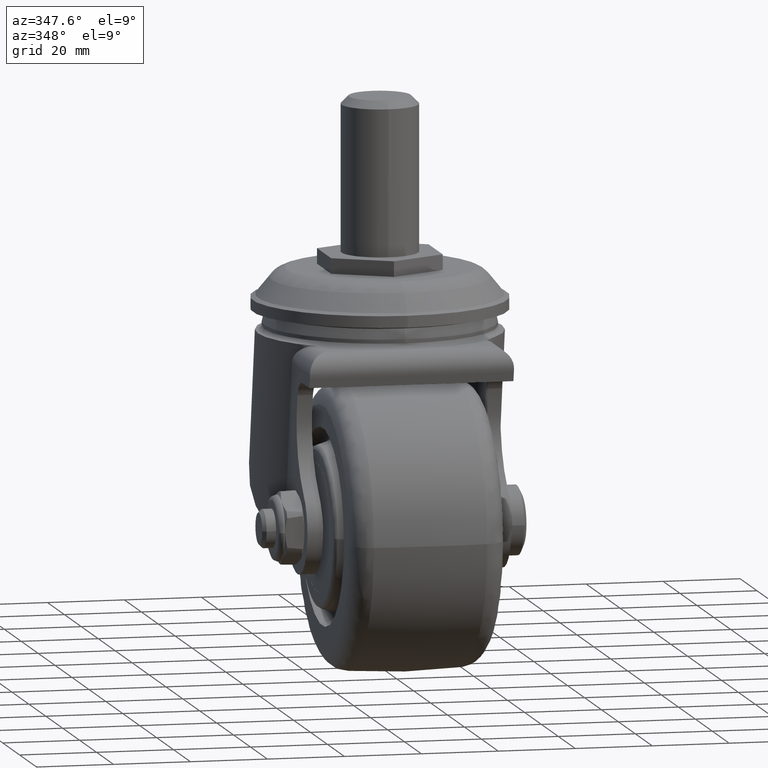
[diagram: clean part render]
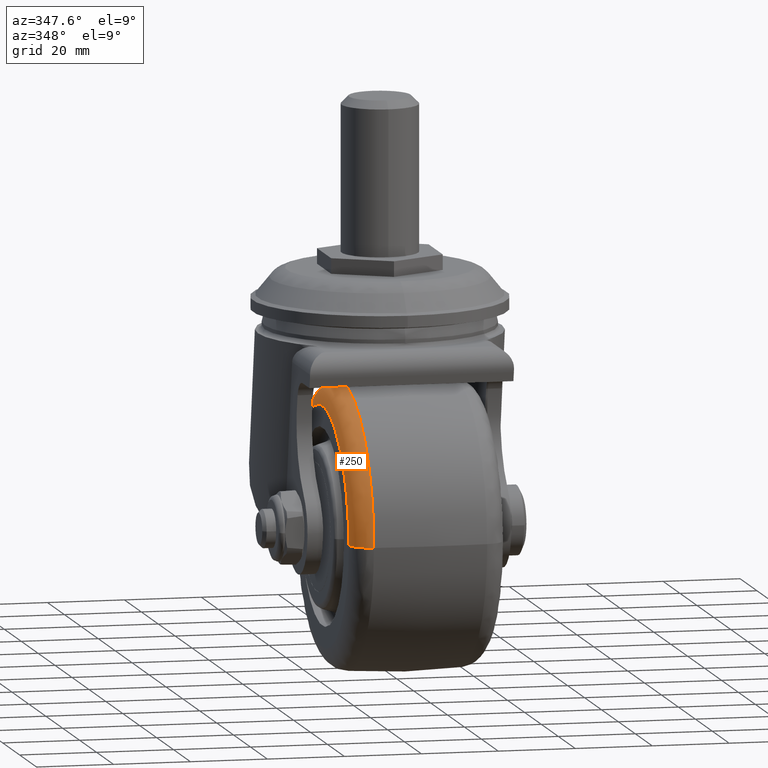
[diagram: same view with one face highlighted and labeled with its STEP entity id]
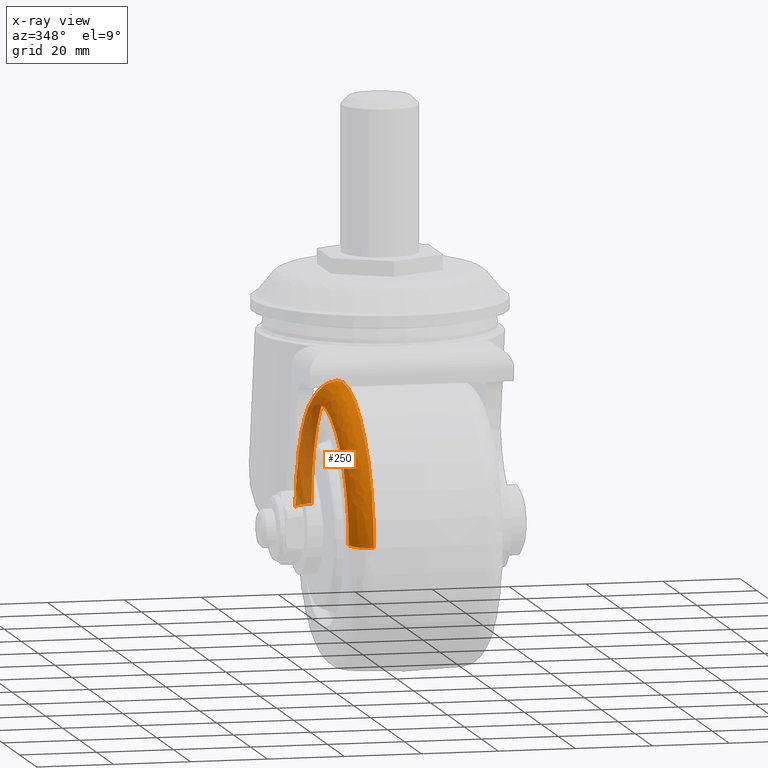
[diagram: x-ray of the same camera — body ghosted, the highlighted face saturated]
A machine part, auxiliary view. The second image highlights one B-rep face of the part: STEP entity #250.
The next image is the same camera in x-ray: the body ghosted, the highlighted face saturated — about 23% of this face is hidden behind the body in this view.
In plain terms, the highlighted face is a freeform B-spline surface patch.
Its self-contained STEP definition (entity closure, byte-faithful):
#250=ADVANCED_FACE('',(#1684),#1683,.T.);
#1683=( BOUNDED_SURFACE() B_SPLINE_SURFACE( 2,2,((#3278,#3279,#3280,#3281,#3282),(#3283,#3284,#3285,#3286,#3287),(#3288,#3289,#3290,#3291,#3292),(#3293,#3294,#3295,#3296,#3297),(#3298,#3299,#3300,#3301,#3302)), .UNSPECIFIED.,.F.,.F.,.F.) B_SPLINE_SURFACE_WITH_KNOTS((3,2,3),(3,2,3),(0.00000000000E+00,5.00000000000E-01,1.00000000000E+00),(0.00000000000E+00,5.00000000000E-01,1.00000000000E+00), .UNSPECIFIED. ) GEOMETRIC_REPRESENTATION_ITEM() RATIONAL_B_SPLINE_SURFACE(((1.00000000000E+00,7.36565499435E-01,1.00000000000E+00,7.36565499435E-01,1.00000000000E+00),(7.07106781187E-01,5.20830459438E-01,7.07106781187E-01,5.20830459438E-01,7.07106781187E-01),(1.00000000000E+00,7.36565499435E-01,1.00000000000E+00,7.36565499435E-01,1.00000000000E+00),(7.07106781187E-01,5.20830459438E-01,7.07106781187E-01,5.20830459438E-01,7.07106781187E-01),(1.00000000000E+00,7.36565499435E-01,1.00000000000E+00,7.36565499435E-01,1.00000000000E+00))) REPRESENTATION_ITEM('') SURFACE() );
#1684=FACE_OUTER_BOUND('',#3303,.T.);
#3278=CARTESIAN_POINT('',(-1.47214851922E+01,-1.02634583219E-19,-2.53761301906E+01));
#3279=CARTESIAN_POINT('',(-2.00000000000E+01,-1.04457090430E-19,-2.58267402950E+01));
#3280=CARTESIAN_POINT('',(-2.00000000000E+01,-1.25883864734E-19,-3.11244537680E+01));
#3281=CARTESIAN_POINT('',(-2.00000000000E+01,-1.47310639039E-19,-3.64221672410E+01));
#3282=CARTESIAN_POINT('',(-1.47214851922E+01,-1.49133146250E-19,-3.68727773453E+01));
#3283=CARTESIAN_POINT('',(-1.47214851922E+01,2.53761301906E+01,-2.53761301906E+01));
#3284=CARTESIAN_POINT('',(-2.00000000000E+01,2.58267402950E+01,-2.58267402950E+01));
#3285=CARTESIAN_POINT('',(-2.00000000000E+01,3.11244537680E+01,-3.11244537680E+01));
#3286=CARTESIAN_POINT('',(-2.00000000000E+01,3.64221672410E+01,-3.64221672410E+01));
#3287=CARTESIAN_POINT('',(-1.47214851922E+01,3.68727773453E+01,-3.68727773453E+01));
#3288=CARTESIAN_POINT('',(-1.47214851922E+01,2.53761301906E+01,-1.55394246522E-15));
#3289=CARTESIAN_POINT('',(-2.00000000000E+01,2.58267402950E+01,-1.58153619882E-15));
#3290=CARTESIAN_POINT('',(-2.00000000000E+01,3.11244537680E+01,-1.90594901797E-15));
#3291=CARTESIAN_POINT('',(-2.00000000000E+01,3.64221672410E+01,-2.23036183712E-15));
#3292=CARTESIAN_POINT('',(-1.47214851922E+01,3.68727773453E+01,-2.25795557073E-15));
#3293=CARTESIAN_POINT('',(-1.47214851922E+01,2.53761301906E+01,2.53761301906E+01));
#3294=CARTESIAN_POINT('',(-2.00000000000E+01,2.58267402950E+01,2.58267402950E+01));
#3295=CARTESIAN_POINT('',(-2.00000000000E+01,3.11244537680E+01,3.11244537680E+01));
#3296=CARTESIAN_POINT('',(-2.00000000000E+01,3.64221672410E+01,3.64221672410E+01));
#3297=CARTESIAN_POINT('',(-1.47214851922E+01,3.68727773453E+01,3.68727773453E+01));
#3298=CARTESIAN_POINT('',(-1.47214851922E+01,3.10778229585E-15,2.53761301906E+01));
#3299=CARTESIAN_POINT('',(-2.00000000000E+01,3.16296794055E-15,2.58267402950E+01));
#3300=CARTESIAN_POINT('',(-2.00000000000E+01,3.81177215208E-15,3.11244537680E+01));
#3301=CARTESIAN_POINT('',(-2.00000000000E+01,4.46057636361E-15,3.64221672410E+01));
#3302=CARTESIAN_POINT('',(-1.47214851922E+01,4.51576200831E-15,3.68727773453E+01));
#3303=EDGE_LOOP('',(#4236,#4237,#4238,#4239));
#4236=ORIENTED_EDGE('',*,*,#4612,.T.);
#4237=ORIENTED_EDGE('',*,*,#4679,.T.);
#4238=ORIENTED_EDGE('',*,*,#4675,.F.);
#4239=ORIENTED_EDGE('',*,*,#4680,.F.);
#4612=EDGE_CURVE('',#6446,#6445,#6453,.T.);
#4675=EDGE_CURVE('',#6869,#6870,#6871,.T.);
#4679=EDGE_CURVE('',#6445,#6870,#6895,.T.);
#4680=EDGE_CURVE('',#6446,#6869,#6901,.T.);
#6445=VERTEX_POINT('',#8537);
#6446=VERTEX_POINT('',#8538);
#6453=CIRCLE('',#8546,3.11244537680E+01);
#6869=VERTEX_POINT('',#8797);
#6870=VERTEX_POINT('',#8798);
#6871=CIRCLE('',#8802,3.68727773453E+01);
#6895=(BOUNDED_CURVE() B_SPLINE_CURVE(2,(#8813,#8814,#8815),.UNSPECIFIED.,.F.,.F.) B_SPLINE_CURVE_WITH_KNOTS((3,3),(5.00000000000E-01,1.00000000000E+00),.UNSPECIFIED.) CURVE() GEOMETRIC_REPRESENTATION_ITEM() RATIONAL_B_SPLINE_CURVE((1.00000000000E+00,7.36565499435E-01,1.00000000000E+00)) REPRESENTATION_ITEM('') );
#6901=(BOUNDED_CURVE() B_SPLINE_CURVE(3,(#8816,#8817,#8818,#8819,#8820),.UNSPECIFIED.,.F.,.F.) B_SPLINE_CURVE_WITH_KNOTS((4,1,4),(4.99999999161E-01,7.49999999523E-01,1.00000000000E+00),.UNSPECIFIED.) CURVE() GEOMETRIC_REPRESENTATION_ITEM() RATIONAL_B_SPLINE_CURVE((1.00000000000E+00,1.00000000000E+00,1.00000000000E+00,1.00000000000E+00,1.00000000000E+00)) REPRESENTATION_ITEM('') );
#8537=CARTESIAN_POINT('',(-2.00000000000E+01,3.55271367880E-15,3.11244537680E+01));
#8538=CARTESIAN_POINT('',(-2.00000000000E+01,0.00000000000E+00,-3.11244537680E+01));
#8543=CARTESIAN_POINT('',(-2.00000000000E+01,0.00000000000E+00,0.00000000000E+00));
#8544=DIRECTION('',(1.00000000000E+00,0.00000000000E+00,0.00000000000E+00));
#8545=DIRECTION('',(0.00000000000E+00,-1.22460635382E-16,-1.00000000000E+00));
#8546=AXIS2_PLACEMENT_3D('',#8543,#8544,#8545);
#8797=CARTESIAN_POINT('',(-1.47214851922E+01,0.00000000000E+00,-3.68727773453E+01));
#8798=CARTESIAN_POINT('',(-1.47214851922E+01,2.36847578587E-15,3.68727773453E+01));
#8799=CARTESIAN_POINT('',(-1.47214851922E+01,0.00000000000E+00,0.00000000000E+00));
#8800=DIRECTION('',(1.00000000000E+00,0.00000000000E+00,0.00000000000E+00));
#8801=DIRECTION('',(0.00000000000E+00,-1.22460635382E-16,-1.00000000000E+00));
#8802=AXIS2_PLACEMENT_3D('',#8799,#8800,#8801);
#8813=CARTESIAN_POINT('',(-2.00000000000E+01,-3.81152038435E-15,3.11244537680E+01));
#8814=CARTESIAN_POINT('',(-2.00000000000E+01,-4.46028174233E-15,3.64221672410E+01));
#8815=CARTESIAN_POINT('',(-1.47214851922E+01,-4.51546374202E-15,3.68727773453E+01));
#8816=CARTESIAN_POINT('',(-2.00000000000E+01,5.92118945798E-15,-3.11244537549E+01));
#8817=CARTESIAN_POINT('',(-2.00111997299E+01,5.18843784397E-15,-3.25470133066E+01));
#8818=CARTESIAN_POINT('',(-1.88848501321E+01,4.35875776447E-15,-3.53981582285E+01));
#8819=CARTESIAN_POINT('',(-1.61398420759E+01,5.18843783372E-15,-3.67629371685E+01));
#8820=CARTESIAN_POINT('',(-1.47214851922E+01,5.92118946467E-15,-3.68727773453E+01));